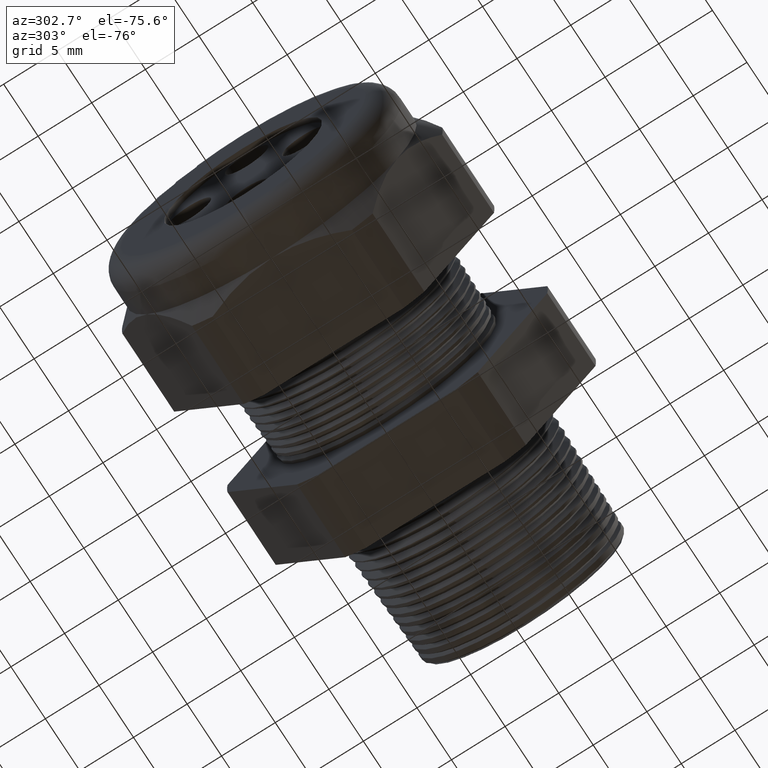
[diagram: clean part render]
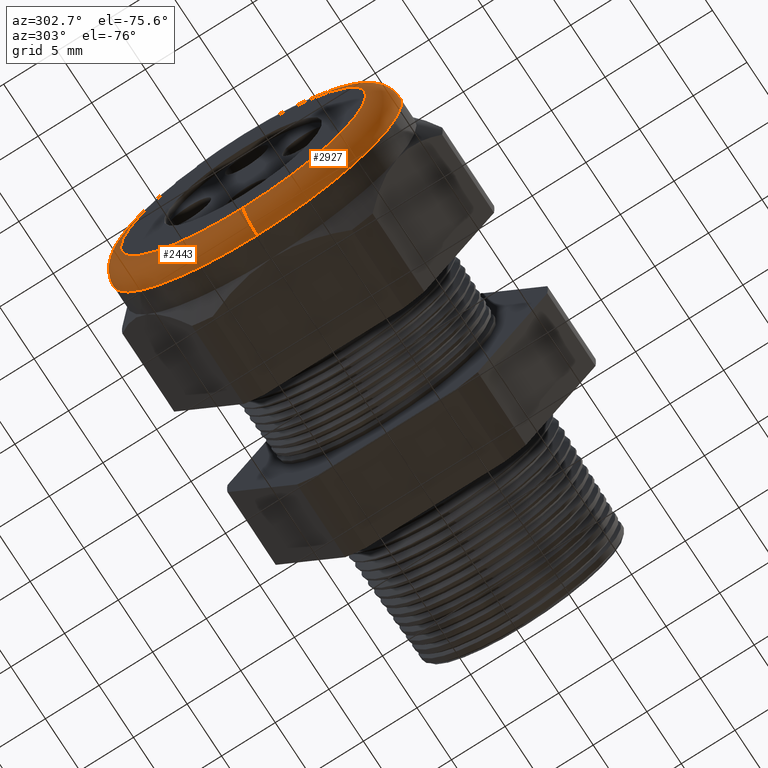
[diagram: same view with one multi-face feature highlighted, each face labeled with its STEP entity id]
A machine part, auxiliary view. The highlighted faces form ONE feature: a constant-radius fillet chain: 2 tangent blend faces with common blend radius 2.032 mm. The faces share edges in the B-rep.
Their STEP definitions:
[1] entity #2443 (Torus):
#2443 = ADVANCED_FACE ( 'NONE', ( #4082 ), #4081, .T. ) ;
#2445 = EDGE_CURVE ( 'NONE', #2448, #2455, #4076, .T. ) ;
#2448 = VERTEX_POINT ( 'NONE', #4070 ) ;
#2449 = EDGE_LOOP ( 'NONE', ( #2454, #2478, #2462, #2461 ) ) ;
#2454 = ORIENTED_EDGE ( 'NONE', *, *, #2445, .F. ) ;
#2455 = VERTEX_POINT ( 'NONE', #4059 ) ;
#2459 = EDGE_CURVE ( 'NONE', #2463, #2465, #4119, .T. ) ;
#2461 = ORIENTED_EDGE ( 'NONE', *, *, #2464, .F. ) ;
#2462 = ORIENTED_EDGE ( 'NONE', *, *, #2459, .F. ) ;
#2463 = VERTEX_POINT ( 'NONE', #4108 ) ;
#2464 = EDGE_CURVE ( 'NONE', #2455, #2463, #4107, .T. ) ;
#2465 = VERTEX_POINT ( 'NONE', #4102 ) ;
#2470 = EDGE_CURVE ( 'NONE', #2448, #2465, #4090, .T. ) ;
#2478 = ORIENTED_EDGE ( 'NONE', *, *, #2470, .T. ) ;
#3833 = DIRECTION ( 'NONE',  ( 0.0000000000000000000, -1.224646799147353900E-016, 1.000000000000000000 ) ) ;
#4059 = CARTESIAN_POINT ( 'NONE',  ( -1.330000000000000100, 6.490628035480972400E-017, 0.5300000000000001400 ) ) ;
#4070 = CARTESIAN_POINT ( 'NONE',  ( -1.330000000000000100, 0.0000000000000000000, -0.5300000000000001400 ) ) ;
#4072 = DIRECTION ( 'NONE',  ( 0.0000000000000000000, 0.0000000000000000000, 1.000000000000000000 ) ) ;
#4073 = DIRECTION ( 'NONE',  ( 1.000000000000000000, 0.0000000000000000000, 0.0000000000000000000 ) ) ;
#4074 = CARTESIAN_POINT ( 'NONE',  ( -1.330000000000000100, 0.0000000000000000000, 0.0000000000000000000 ) ) ;
#4075 = AXIS2_PLACEMENT_3D ( 'NONE', #4074, #4073, #4072 ) ;
#4076 = CIRCLE ( 'NONE', #4075, 0.5300000000000001400 ) ;
#4077 = DIRECTION ( 'NONE',  ( 0.0000000000000000000, 0.0000000000000000000, 1.000000000000000000 ) ) ;
#4078 = DIRECTION ( 'NONE',  ( -1.000000000000000000, 0.0000000000000000000, 0.0000000000000000000 ) ) ;
#4079 = CARTESIAN_POINT ( 'NONE',  ( -1.330000000000000100, 0.0000000000000000000, 0.0000000000000000000 ) ) ;
#4080 = AXIS2_PLACEMENT_3D ( 'NONE', #4079, #4078, #4077 ) ;
#4081 = TOROIDAL_SURFACE ( 'NONE', #4080, 0.4500000000000001200, 0.08000000000000000200 ) ;
#4082 = FACE_OUTER_BOUND ( 'NONE', #2449, .T. ) ;
#4087 = DIRECTION ( 'NONE',  ( 0.0000000000000000000, 1.000000000000000000, 1.224646799147353200E-016 ) ) ;
#4088 = CARTESIAN_POINT ( 'NONE',  ( -1.330000000000000100, 5.510910596163090800E-017, -0.4500000000000001200 ) ) ;
#4089 = AXIS2_PLACEMENT_3D ( 'NONE', #4088, #4087, #3833 ) ;
#4090 = CIRCLE ( 'NONE', #4089, 0.07999999999999996000 ) ;
#4102 = CARTESIAN_POINT ( 'NONE',  ( -1.409999999999999900, 6.000769315822032200E-017, -0.4500000000000001200 ) ) ;
#4103 = DIRECTION ( 'NONE',  ( 0.0000000000000000000, 0.0000000000000000000, -1.000000000000000000 ) ) ;
#4104 = DIRECTION ( 'NONE',  ( 0.0000000000000000000, -1.000000000000000000, 0.0000000000000000000 ) ) ;
#4105 = CARTESIAN_POINT ( 'NONE',  ( -1.330000000000000100, 0.0000000000000000000, 0.4500000000000001200 ) ) ;
#4106 = AXIS2_PLACEMENT_3D ( 'NONE', #4105, #4104, #4103 ) ;
#4107 = CIRCLE ( 'NONE', #4106, 0.07999999999999996000 ) ;
#4108 = CARTESIAN_POINT ( 'NONE',  ( -1.409999999999999900, 0.0000000000000000000, 0.4500000000000001200 ) ) ;
#4115 = DIRECTION ( 'NONE',  ( 0.0000000000000000000, 0.0000000000000000000, 1.000000000000000000 ) ) ;
#4116 = DIRECTION ( 'NONE',  ( -1.000000000000000000, 0.0000000000000000000, 0.0000000000000000000 ) ) ;
#4117 = CARTESIAN_POINT ( 'NONE',  ( -1.409999999999999900, 0.0000000000000000000, 0.0000000000000000000 ) ) ;
#4118 = AXIS2_PLACEMENT_3D ( 'NONE', #4117, #4116, #4115 ) ;
#4119 = CIRCLE ( 'NONE', #4118, 0.4500000000000001200 ) ;
[2] entity #2927 (Torus):
#1918 = DIRECTION ( 'NONE',  ( 0.0000000000000000000, 0.0000000000000000000, 1.000000000000000000 ) ) ;
#1919 = DIRECTION ( 'NONE',  ( 1.000000000000000000, 0.0000000000000000000, 0.0000000000000000000 ) ) ;
#1920 = CARTESIAN_POINT ( 'NONE',  ( -1.330000000000000100, 0.0000000000000000000, 0.0000000000000000000 ) ) ;
#1921 = AXIS2_PLACEMENT_3D ( 'NONE', #1920, #1919, #1918 ) ;
#1922 = CIRCLE ( 'NONE', #1921, 0.5300000000000001400 ) ;
#1989 = DIRECTION ( 'NONE',  ( 0.0000000000000000000, 0.0000000000000000000, 1.000000000000000000 ) ) ;
#1990 = DIRECTION ( 'NONE',  ( -1.000000000000000000, 0.0000000000000000000, 0.0000000000000000000 ) ) ;
#1991 = CARTESIAN_POINT ( 'NONE',  ( -1.409999999999999900, 0.0000000000000000000, 0.0000000000000000000 ) ) ;
#1992 = AXIS2_PLACEMENT_3D ( 'NONE', #1991, #1990, #1989 ) ;
#1993 = CIRCLE ( 'NONE', #1992, 0.4500000000000001200 ) ;
#2448 = VERTEX_POINT ( 'NONE', #4070 ) ;
#2455 = VERTEX_POINT ( 'NONE', #4059 ) ;
#2463 = VERTEX_POINT ( 'NONE', #4108 ) ;
#2464 = EDGE_CURVE ( 'NONE', #2455, #2463, #4107, .T. ) ;
#2465 = VERTEX_POINT ( 'NONE', #4102 ) ;
#2470 = EDGE_CURVE ( 'NONE', #2448, #2465, #4090, .T. ) ;
#2927 = ADVANCED_FACE ( 'NONE', ( #4989 ), #4986, .T. ) ;
#2928 = EDGE_LOOP ( 'NONE', ( #2929, #2930, #2931, #2984 ) ) ;
#2929 = ORIENTED_EDGE ( 'NONE', *, *, #2470, .F. ) ;
#2930 = ORIENTED_EDGE ( 'NONE', *, *, #5415, .F. ) ;
#2931 = ORIENTED_EDGE ( 'NONE', *, *, #2464, .T. ) ;
#2984 = ORIENTED_EDGE ( 'NONE', *, *, #5444, .F. ) ;
#3833 = DIRECTION ( 'NONE',  ( 0.0000000000000000000, -1.224646799147353900E-016, 1.000000000000000000 ) ) ;
#4059 = CARTESIAN_POINT ( 'NONE',  ( -1.330000000000000100, 6.490628035480972400E-017, 0.5300000000000001400 ) ) ;
#4070 = CARTESIAN_POINT ( 'NONE',  ( -1.330000000000000100, 0.0000000000000000000, -0.5300000000000001400 ) ) ;
#4087 = DIRECTION ( 'NONE',  ( 0.0000000000000000000, 1.000000000000000000, 1.224646799147353200E-016 ) ) ;
#4088 = CARTESIAN_POINT ( 'NONE',  ( -1.330000000000000100, 5.510910596163090800E-017, -0.4500000000000001200 ) ) ;
#4089 = AXIS2_PLACEMENT_3D ( 'NONE', #4088, #4087, #3833 ) ;
#4090 = CIRCLE ( 'NONE', #4089, 0.07999999999999996000 ) ;
#4102 = CARTESIAN_POINT ( 'NONE',  ( -1.409999999999999900, 6.000769315822032200E-017, -0.4500000000000001200 ) ) ;
#4103 = DIRECTION ( 'NONE',  ( 0.0000000000000000000, 0.0000000000000000000, -1.000000000000000000 ) ) ;
#4104 = DIRECTION ( 'NONE',  ( 0.0000000000000000000, -1.000000000000000000, 0.0000000000000000000 ) ) ;
#4105 = CARTESIAN_POINT ( 'NONE',  ( -1.330000000000000100, 0.0000000000000000000, 0.4500000000000001200 ) ) ;
#4106 = AXIS2_PLACEMENT_3D ( 'NONE', #4105, #4104, #4103 ) ;
#4107 = CIRCLE ( 'NONE', #4106, 0.07999999999999996000 ) ;
#4108 = CARTESIAN_POINT ( 'NONE',  ( -1.409999999999999900, 0.0000000000000000000, 0.4500000000000001200 ) ) ;
#4983 = DIRECTION ( 'NONE',  ( 0.0000000000000000000, 0.0000000000000000000, 1.000000000000000000 ) ) ;
#4984 = DIRECTION ( 'NONE',  ( -1.000000000000000000, 0.0000000000000000000, 0.0000000000000000000 ) ) ;
#4985 = AXIS2_PLACEMENT_3D ( 'NONE', #4988, #4984, #4983 ) ;
#4986 = TOROIDAL_SURFACE ( 'NONE', #4985, 0.4500000000000001200, 0.08000000000000000200 ) ;
#4988 = CARTESIAN_POINT ( 'NONE',  ( -1.330000000000000100, 0.0000000000000000000, 0.0000000000000000000 ) ) ;
#4989 = FACE_OUTER_BOUND ( 'NONE', #2928, .T. ) ;
#5415 = EDGE_CURVE ( 'NONE', #2455, #2448, #1922, .T. ) ;
#5444 = EDGE_CURVE ( 'NONE', #2465, #2463, #1993, .T. ) ;